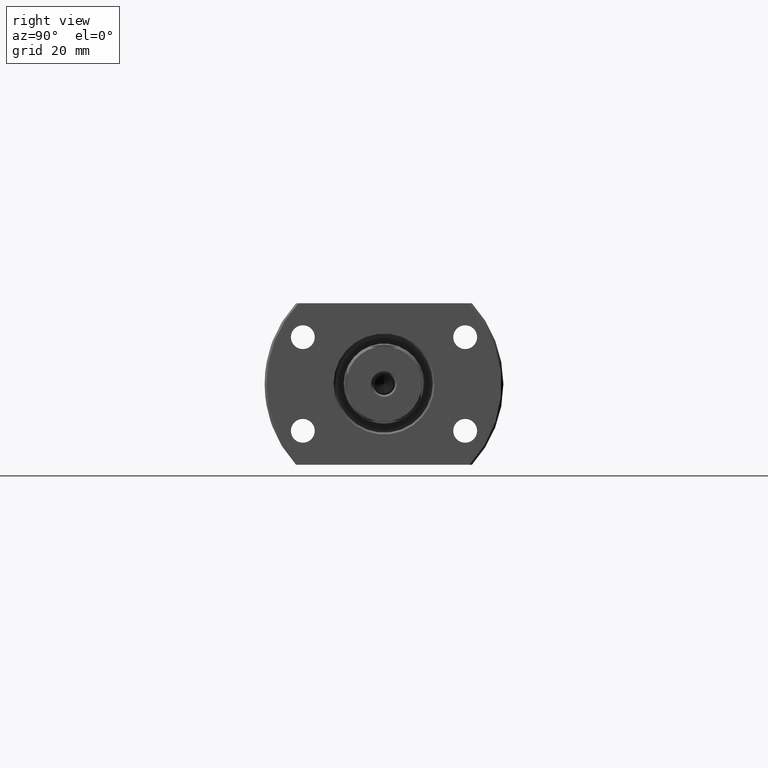
[diagram: clean part render]
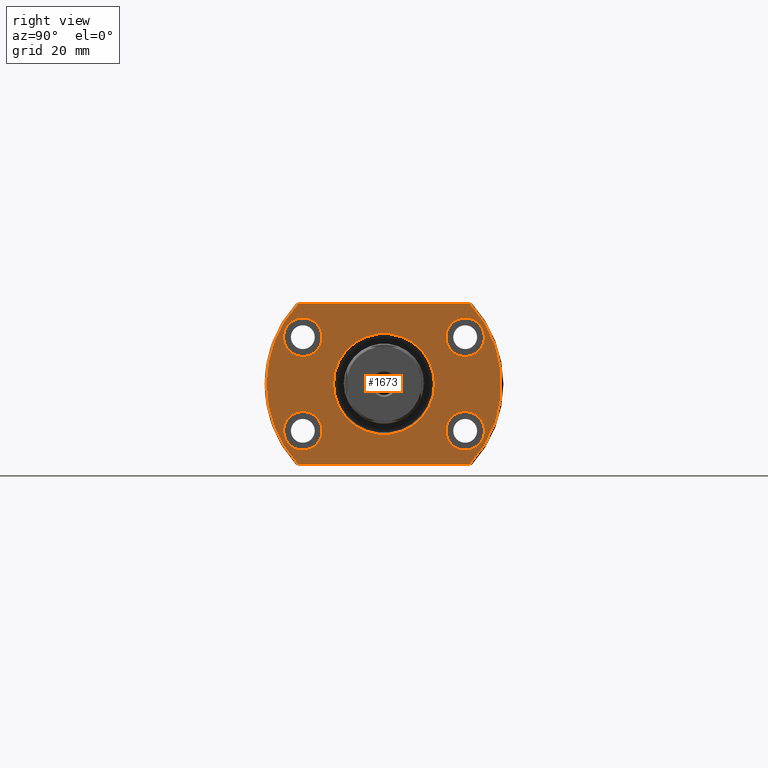
[diagram: same view with one face highlighted and labeled with its STEP entity id]
A machine part, right view. The second image highlights one B-rep face of the part: STEP entity #1673.
In plain terms, the highlighted planar face has unit normal (-1, -0, 0).
Its self-contained STEP definition (entity closure, byte-faithful):
#3 = VERTEX_POINT ( 'NONE', #192 ) ;
#42 = CARTESIAN_POINT ( 'NONE',  ( 31.50000000000000000, -32.00000000000000000, 0.000000000000000000 ) ) ;
#48 = LINE ( 'NONE', #1526, #1568 ) ;
#110 = DIRECTION ( 'NONE',  ( 0.000000000000000000, -1.000000000000000000, 0.000000000000000000 ) ) ;
#125 = DIRECTION ( 'NONE',  ( -1.000000000000000000, -2.721437331438560389E-17, 0.000000000000000000 ) ) ;
#142 = CARTESIAN_POINT ( 'NONE',  ( 31.50000000000079226, 27.34999999999909548, -12.75000000000000178 ) ) ;
#143 = FACE_BOUND ( 'NONE', #2537, .T. ) ;
#144 = DIRECTION ( 'NONE',  ( 2.907726969256361977E-14, 1.000000000000000000, 0.000000000000000000 ) ) ;
#173 = AXIS2_PLACEMENT_3D ( 'NONE', #2635, #2882, #2135 ) ;
#189 = EDGE_CURVE ( 'NONE', #1550, #1040, #3181, .T. ) ;
#192 = CARTESIAN_POINT ( 'NONE',  ( 31.50000000000000000, -23.23790007724450035, -22.00000000000000355 ) ) ;
#202 = EDGE_CURVE ( 'NONE', #1763, #2393, #2085, .T. ) ;
#229 = AXIS2_PLACEMENT_3D ( 'NONE', #1746, #251, #1511 ) ;
#251 = DIRECTION ( 'NONE',  ( 1.000000000000000000, -2.886466111666351885E-14, 0.000000000000000000 ) ) ;
#263 = EDGE_CURVE ( 'NONE', #2228, #988, #683, .T. ) ;
#320 = DIRECTION ( 'NONE',  ( 1.000000000000000000, -2.887798767815668620E-14, -6.310887241768094443E-30 ) ) ;
#332 = CARTESIAN_POINT ( 'NONE',  ( 31.49999999999951328, -16.85000000000091092, 12.74999999999999822 ) ) ;
#338 = ORIENTED_EDGE ( 'NONE', *, *, #1056, .T. ) ;
#368 = FACE_BOUND ( 'NONE', #2786, .T. ) ;
#377 = VERTEX_POINT ( 'NONE', #142 ) ;
#435 = AXIS2_PLACEMENT_3D ( 'NONE', #2574, #1109, #110 ) ;
#439 = CARTESIAN_POINT ( 'NONE',  ( 31.49999999999920774, -27.35000000000091092, -12.75000000000000178 ) ) ;
#491 = CARTESIAN_POINT ( 'NONE',  ( 31.50000000000048672, 16.84999999999909193, -12.75000000000000178 ) ) ;
#509 = DIRECTION ( 'NONE',  ( 1.000000000000000000, -2.886466111666351885E-14, 0.000000000000000000 ) ) ;
#551 = DIRECTION ( 'NONE',  ( 2.907726969256361977E-14, 1.000000000000000000, 0.000000000000000000 ) ) ;
#566 = EDGE_CURVE ( 'NONE', #2096, #1071, #1304, .T. ) ;
#598 = AXIS2_PLACEMENT_3D ( 'NONE', #1251, #2275, #2013 ) ;
#646 = DIRECTION ( 'NONE',  ( 1.000000000000000000, -2.887798767815668620E-14, -6.310887241768094443E-30 ) ) ;
#652 = CIRCLE ( 'NONE', #2822, 5.250000000000000888 ) ;
#668 = CARTESIAN_POINT ( 'NONE',  ( 31.50000000000000000, -32.00000000000000000, -22.00000000000000355 ) ) ;
#678 = DIRECTION ( 'NONE',  ( 1.000000000000000000, 2.721437331438560389E-17, -0.000000000000000000 ) ) ;
#683 = CIRCLE ( 'NONE', #173, 13.74999999999917577 ) ;
#686 = AXIS2_PLACEMENT_3D ( 'NONE', #1736, #509, #2336 ) ;
#748 = AXIS2_PLACEMENT_3D ( 'NONE', #2361, #3118, #1887 ) ;
#785 = CARTESIAN_POINT ( 'NONE',  ( 31.50000000000063949, 22.09999999999909193, -12.75000000000000178 ) ) ;
#812 = ORIENTED_EDGE ( 'NONE', *, *, #3012, .F. ) ;
#841 = EDGE_CURVE ( 'NONE', #3, #1192, #1620, .T. ) ;
#864 = DIRECTION ( 'NONE',  ( 1.000000000000000000, -2.887798767815668620E-14, -6.310887241768094443E-30 ) ) ;
#866 = CIRCLE ( 'NONE', #2207, 5.250000000000000888 ) ;
#879 = PLANE ( 'NONE',  #3090 ) ;
#901 = AXIS2_PLACEMENT_3D ( 'NONE', #2370, #678, #2172 ) ;
#962 = VERTEX_POINT ( 'NONE', #491 ) ;
#988 = VERTEX_POINT ( 'NONE', #1237 ) ;
#1010 = EDGE_CURVE ( 'NONE', #377, #962, #2093, .T. ) ;
#1023 = DIRECTION ( 'NONE',  ( 0.000000000000000000, 1.000000000000000000, 0.000000000000000000 ) ) ;
#1037 = CARTESIAN_POINT ( 'NONE',  ( 31.50000000000000000, -23.23790007724449680, 22.00000000000000355 ) ) ;
#1040 = VERTEX_POINT ( 'NONE', #42 ) ;
#1056 = EDGE_CURVE ( 'NONE', #988, #2228, #1618, .T. ) ;
#1071 = VERTEX_POINT ( 'NONE', #1532 ) ;
#1109 = DIRECTION ( 'NONE',  ( -1.000000000000000000, -2.721437331438560389E-17, 0.000000000000000000 ) ) ;
#1117 = AXIS2_PLACEMENT_3D ( 'NONE', #1540, #320, #1258 ) ;
#1125 = DIRECTION ( 'NONE',  ( 2.721437331438560389E-17, -1.000000000000000000, 0.000000000000000000 ) ) ;
#1145 = CARTESIAN_POINT ( 'NONE',  ( 31.50000000000000000, 23.23790007724450035, -22.00000000000000355 ) ) ;
#1169 = CARTESIAN_POINT ( 'NONE',  ( 31.50000000000000000, -32.00000000000000000, 0.000000000000000000 ) ) ;
#1192 = VERTEX_POINT ( 'NONE', #1145 ) ;
#1195 = EDGE_CURVE ( 'NONE', #1040, #3, #2288, .T. ) ;
#1237 = CARTESIAN_POINT ( 'NONE',  ( 31.50000000000000000, 13.74999999999826805, 0.000000000000000000 ) ) ;
#1251 = CARTESIAN_POINT ( 'NONE',  ( 31.50000000000000000, 8.572527594031465301E-16, 0.000000000000000000 ) ) ;
#1258 = DIRECTION ( 'NONE',  ( 2.907726969256361977E-14, 1.000000000000000000, 0.000000000000000000 ) ) ;
#1304 = CIRCLE ( 'NONE', #686, 5.250000000000000888 ) ;
#1324 = DIRECTION ( 'NONE',  ( -0.000000000000000000, 1.000000000000000000, 0.000000000000000000 ) ) ;
#1376 = AXIS2_PLACEMENT_3D ( 'NONE', #785, #864, #551 ) ;
#1440 = ORIENTED_EDGE ( 'NONE', *, *, #2068, .F. ) ;
#1511 = DIRECTION ( 'NONE',  ( 2.907726969256361977E-14, 1.000000000000000000, 0.000000000000000000 ) ) ;
#1526 = CARTESIAN_POINT ( 'NONE',  ( 31.50000000000000000, 23.92174742781217489, 22.00000000000000355 ) ) ;
#1532 = CARTESIAN_POINT ( 'NONE',  ( 31.50000000000048672, 16.84999999999909193, 12.74999999999999822 ) ) ;
#1534 = VERTEX_POINT ( 'NONE', #1801 ) ;
#1540 = CARTESIAN_POINT ( 'NONE',  ( 31.49999999999936051, -22.10000000000091092, 12.74999999999999822 ) ) ;
#1550 = VERTEX_POINT ( 'NONE', #1037 ) ;
#1552 = CARTESIAN_POINT ( 'NONE',  ( 31.49999999999936051, -22.10000000000091092, -12.75000000000000178 ) ) ;
#1568 = VECTOR ( 'NONE', #1324, 1000.000000000000000 ) ;
#1579 = CARTESIAN_POINT ( 'NONE',  ( 31.50000000000079226, 27.34999999999909548, 12.74999999999999822 ) ) ;
#1618 = CIRCLE ( 'NONE', #435, 13.74999999999917577 ) ;
#1620 = LINE ( 'NONE', #668, #2088 ) ;
#1654 = CARTESIAN_POINT ( 'NONE',  ( 31.49999999999951328, -16.85000000000091092, -12.75000000000000178 ) ) ;
#1673 = ADVANCED_FACE ( 'NONE', ( #2883, #2583, #368, #2345, #143, #2123 ), #879, .F. ) ;
#1736 = CARTESIAN_POINT ( 'NONE',  ( 31.50000000000063949, 22.09999999999909193, 12.74999999999999822 ) ) ;
#1746 = CARTESIAN_POINT ( 'NONE',  ( 31.50000000000063949, 22.09999999999909193, 12.74999999999999822 ) ) ;
#1761 = EDGE_LOOP ( 'NONE', ( #338, #2061 ) ) ;
#1762 = DIRECTION ( 'NONE',  ( 2.907726969256361977E-14, 1.000000000000000000, 0.000000000000000000 ) ) ;
#1763 = VERTEX_POINT ( 'NONE', #2428 ) ;
#1766 = ORIENTED_EDGE ( 'NONE', *, *, #189, .T. ) ;
#1801 = CARTESIAN_POINT ( 'NONE',  ( 31.50000000000000000, 23.23790007724450035, 22.00000000000000355 ) ) ;
#1844 = CIRCLE ( 'NONE', #1376, 5.250000000000000888 ) ;
#1876 = EDGE_CURVE ( 'NONE', #1550, #1534, #48, .T. ) ;
#1878 = AXIS2_PLACEMENT_3D ( 'NONE', #2492, #2999, #1762 ) ;
#1887 = DIRECTION ( 'NONE',  ( 2.907726969256361977E-14, 1.000000000000000000, 0.000000000000000000 ) ) ;
#1969 = ORIENTED_EDGE ( 'NONE', *, *, #566, .F. ) ;
#2013 = DIRECTION ( 'NONE',  ( 0.000000000000000000, 1.000000000000000000, 0.000000000000000000 ) ) ;
#2036 = DIRECTION ( 'NONE',  ( 1.000000000000000000, 2.721437331438560389E-17, -0.000000000000000000 ) ) ;
#2061 = ORIENTED_EDGE ( 'NONE', *, *, #263, .T. ) ;
#2068 = EDGE_CURVE ( 'NONE', #2987, #2131, #2101, .T. ) ;
#2076 = ORIENTED_EDGE ( 'NONE', *, *, #2367, .T. ) ;
#2085 = CIRCLE ( 'NONE', #1117, 5.250000000000000888 ) ;
#2088 = VECTOR ( 'NONE', #2389, 1000.000000000000000 ) ;
#2093 = CIRCLE ( 'NONE', #1878, 5.250000000000000888 ) ;
#2096 = VERTEX_POINT ( 'NONE', #1579 ) ;
#2101 = CIRCLE ( 'NONE', #748, 5.250000000000000888 ) ;
#2123 = FACE_OUTER_BOUND ( 'NONE', #2642, .T. ) ;
#2131 = VERTEX_POINT ( 'NONE', #1654 ) ;
#2135 = DIRECTION ( 'NONE',  ( 0.000000000000000000, -1.000000000000000000, 0.000000000000000000 ) ) ;
#2172 = DIRECTION ( 'NONE',  ( 0.000000000000000000, 1.000000000000000000, 0.000000000000000000 ) ) ;
#2207 = AXIS2_PLACEMENT_3D ( 'NONE', #2637, #646, #144 ) ;
#2228 = VERTEX_POINT ( 'NONE', #2645 ) ;
#2231 = ORIENTED_EDGE ( 'NONE', *, *, #1876, .F. ) ;
#2275 = DIRECTION ( 'NONE',  ( 1.000000000000000000, 2.721437331438560389E-17, -0.000000000000000000 ) ) ;
#2288 = CIRCLE ( 'NONE', #901, 32.00000000000000000 ) ;
#2314 = ORIENTED_EDGE ( 'NONE', *, *, #202, .F. ) ;
#2336 = DIRECTION ( 'NONE',  ( 2.907726969256361977E-14, 1.000000000000000000, 0.000000000000000000 ) ) ;
#2345 = FACE_BOUND ( 'NONE', #2954, .T. ) ;
#2354 = EDGE_CURVE ( 'NONE', #2131, #2987, #652, .T. ) ;
#2361 = CARTESIAN_POINT ( 'NONE',  ( 31.49999999999936051, -22.10000000000091092, -12.75000000000000178 ) ) ;
#2367 = EDGE_CURVE ( 'NONE', #1192, #1534, #2767, .T. ) ;
#2370 = CARTESIAN_POINT ( 'NONE',  ( 31.50000000000000000, 8.572527594031465301E-16, 0.000000000000000000 ) ) ;
#2389 = DIRECTION ( 'NONE',  ( -2.721437331438560389E-17, 1.000000000000000000, -0.000000000000000000 ) ) ;
#2393 = VERTEX_POINT ( 'NONE', #332 ) ;
#2428 = CARTESIAN_POINT ( 'NONE',  ( 31.49999999999920774, -27.35000000000091092, 12.74999999999999822 ) ) ;
#2465 = ORIENTED_EDGE ( 'NONE', *, *, #2354, .F. ) ;
#2492 = CARTESIAN_POINT ( 'NONE',  ( 31.50000000000063949, 22.09999999999909193, -12.75000000000000178 ) ) ;
#2507 = CIRCLE ( 'NONE', #229, 5.250000000000000888 ) ;
#2537 = EDGE_LOOP ( 'NONE', ( #3219, #2626 ) ) ;
#2544 = DIRECTION ( 'NONE',  ( 2.907726969256361977E-14, 1.000000000000000000, 0.000000000000000000 ) ) ;
#2552 = CARTESIAN_POINT ( 'NONE',  ( 31.50000000000000000, 8.572527594031465301E-16, 0.000000000000000000 ) ) ;
#2574 = CARTESIAN_POINT ( 'NONE',  ( 31.50000000000000000, -9.092368251749008943E-13, 0.000000000000000000 ) ) ;
#2583 = FACE_BOUND ( 'NONE', #3061, .T. ) ;
#2626 = ORIENTED_EDGE ( 'NONE', *, *, #2946, .F. ) ;
#2632 = ORIENTED_EDGE ( 'NONE', *, *, #2666, .F. ) ;
#2635 = CARTESIAN_POINT ( 'NONE',  ( 31.50000000000000000, -9.092368251749008943E-13, 0.000000000000000000 ) ) ;
#2637 = CARTESIAN_POINT ( 'NONE',  ( 31.49999999999936051, -22.10000000000091092, 12.74999999999999822 ) ) ;
#2642 = EDGE_LOOP ( 'NONE', ( #2231, #1766, #2774, #3176, #2076 ) ) ;
#2645 = CARTESIAN_POINT ( 'NONE',  ( 31.50000000000000000, -13.75000000000088107, 1.683889348827607301E-15 ) ) ;
#2658 = AXIS2_PLACEMENT_3D ( 'NONE', #2552, #2036, #1023 ) ;
#2666 = EDGE_CURVE ( 'NONE', #1071, #2096, #2507, .T. ) ;
#2754 = DIRECTION ( 'NONE',  ( 1.000000000000000000, -2.887798767815668620E-14, -6.310887241768094443E-30 ) ) ;
#2767 = CIRCLE ( 'NONE', #598, 32.00000000000000000 ) ;
#2774 = ORIENTED_EDGE ( 'NONE', *, *, #1195, .T. ) ;
#2786 = EDGE_LOOP ( 'NONE', ( #812, #2314 ) ) ;
#2822 = AXIS2_PLACEMENT_3D ( 'NONE', #1552, #2754, #2544 ) ;
#2882 = DIRECTION ( 'NONE',  ( -1.000000000000000000, -2.721437331438560389E-17, 0.000000000000000000 ) ) ;
#2883 = FACE_BOUND ( 'NONE', #1761, .T. ) ;
#2946 = EDGE_CURVE ( 'NONE', #962, #377, #1844, .T. ) ;
#2954 = EDGE_LOOP ( 'NONE', ( #2465, #1440 ) ) ;
#2987 = VERTEX_POINT ( 'NONE', #439 ) ;
#2999 = DIRECTION ( 'NONE',  ( 1.000000000000000000, -2.887798767815668620E-14, -6.310887241768094443E-30 ) ) ;
#3012 = EDGE_CURVE ( 'NONE', #2393, #1763, #866, .T. ) ;
#3061 = EDGE_LOOP ( 'NONE', ( #1969, #2632 ) ) ;
#3090 = AXIS2_PLACEMENT_3D ( 'NONE', #1169, #125, #1125 ) ;
#3118 = DIRECTION ( 'NONE',  ( 1.000000000000000000, -2.887798767815668620E-14, -6.310887241768094443E-30 ) ) ;
#3176 = ORIENTED_EDGE ( 'NONE', *, *, #841, .T. ) ;
#3181 = CIRCLE ( 'NONE', #2658, 32.00000000000000000 ) ;
#3219 = ORIENTED_EDGE ( 'NONE', *, *, #1010, .F. ) ;